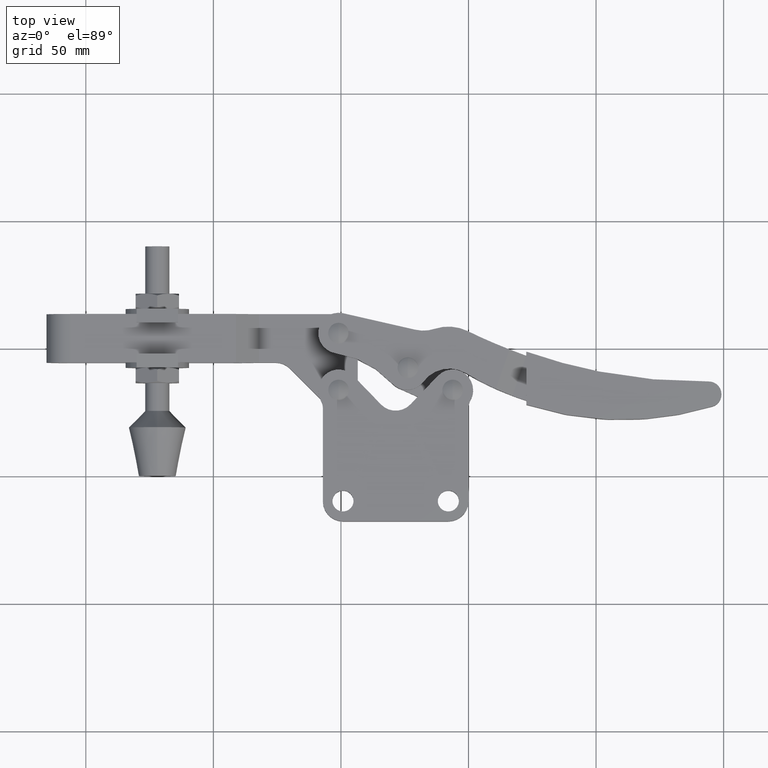
[diagram: clean part render]
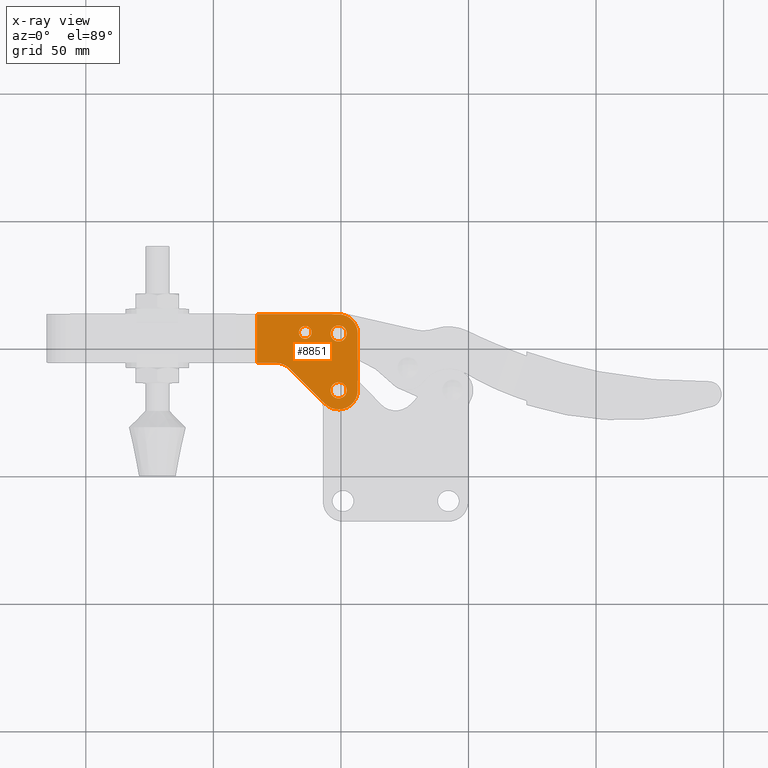
[diagram: x-ray — body ghosted, one internal face saturated and labeled with its STEP entity id]
A machine part, top view, then the same camera in x-ray: the body is ghosted and one INTERNAL B-rep face — a face not visible from any outside direction — is saturated and labeled: STEP entity #8851.
In plain terms, the highlighted planar face has unit normal (0, 0, -1).
Its self-contained STEP definition (entity closure, byte-faithful):
#44 = CARTESIAN_POINT ( 'NONE',  ( -63.99995407773911900, 56.30002650133089000, -4.000050000002540100 ) ) ;
#176 = FACE_BOUND ( 'NONE', #1100, .T. ) ;
#189 = DIRECTION ( 'NONE',  ( 2.023005870433254700E-006, 0.9999999999979537500, 0.0000000000000000000 ) ) ;
#372 = CARTESIAN_POINT ( 'NONE',  ( -39.51663489087625400, 26.09997697137130500, -4.000050000001612800 ) ) ;
#446 = ORIENTED_EDGE ( 'NONE', *, *, #3981, .T. ) ;
#448 = EDGE_LOOP ( 'NONE', ( #2309, #8952 ) ) ;
#657 = AXIS2_PLACEMENT_3D ( 'NONE', #2849, #8020, #3609 ) ;
#766 = DIRECTION ( 'NONE',  ( 2.023005873930153100E-006, 0.9999999999979536400, 0.0000000000000000000 ) ) ;
#771 = EDGE_LOOP ( 'NONE', ( #2838, #5080 ) ) ;
#841 = VERTEX_POINT ( 'NONE', #1099 ) ;
#846 = DIRECTION ( 'NONE',  ( -3.792184384588090100E-014, -2.488427435205626500E-017, 1.000000000000000000 ) ) ;
#856 = ORIENTED_EDGE ( 'NONE', *, *, #1672, .T. ) ;
#865 = ORIENTED_EDGE ( 'NONE', *, *, #3586, .T. ) ;
#873 = VERTEX_POINT ( 'NONE', #1000 ) ;
#906 = ORIENTED_EDGE ( 'NONE', *, *, #1124, .T. ) ;
#946 = EDGE_CURVE ( 'NONE', #8959, #1860, #7096, .T. ) ;
#971 = CARTESIAN_POINT ( 'NONE',  ( -83.00009926338675800, 26.10006493867436800, -4.000050000003261300 ) ) ;
#988 = AXIS2_PLACEMENT_3D ( 'NONE', #7773, #3359, #8522 ) ;
#1000 = CARTESIAN_POINT ( 'NONE',  ( -43.40000000001481300, 33.59998482745665900, -4.000050000001759400 ) ) ;
#1038 = DIRECTION ( 'NONE',  ( -3.792184384588090100E-014, -2.488427435205626500E-017, 1.000000000000000000 ) ) ;
#1066 = CARTESIAN_POINT ( 'NONE',  ( -50.89995488696815300, 55.89999999995472300, -4.000050000002043600 ) ) ;
#1068 = EDGE_CURVE ( 'NONE', #4754, #3084, #9172, .T. ) ;
#1099 = CARTESIAN_POINT ( 'NONE',  ( -43.39995488698365700, 55.89998482741069100, -4.000050000001758500 ) ) ;
#1100 = EDGE_LOOP ( 'NONE', ( #5196, #8486 ) ) ;
#1124 = EDGE_CURVE ( 'NONE', #1931, #7022, #5248, .T. ) ;
#1130 = DIRECTION ( 'NONE',  ( 2.023005871480253500E-006, 0.9999999999979536400, 2.496099046476291200E-017 ) ) ;
#1154 = CIRCLE ( 'NONE', #988, 2.499999999999955600 ) ;
#1176 = VECTOR ( 'NONE', #7626, 1000.000000000000100 ) ;
#1309 = AXIS2_PLACEMENT_3D ( 'NONE', #5287, #846, #6037 ) ;
#1520 = CIRCLE ( 'NONE', #6377, 3.175000000000152100 ) ;
#1524 = AXIS2_PLACEMENT_3D ( 'NONE', #44, #5198, #766 ) ;
#1538 = CARTESIAN_POINT ( 'NONE',  ( -47.72499999999894300, 33.60000000000069800, -4.000050000001923700 ) ) ;
#1641 = EDGE_CURVE ( 'NONE', #3084, #4754, #1520, .T. ) ;
#1672 = EDGE_CURVE ( 'NONE', #7887, #4812, #5226, .T. ) ;
#1687 = CARTESIAN_POINT ( 'NONE',  ( -56.20331158749574700, 28.29670986972097100, -4.000050000002245200 ) ) ;
#1749 = ORIENTED_EDGE ( 'NONE', *, *, #5071, .T. ) ;
#1810 = CARTESIAN_POINT ( 'NONE',  ( -83.00006224237932900, 44.40006493863683800, -4.000050000003262200 ) ) ;
#1860 = VERTEX_POINT ( 'NONE', #1538 ) ;
#1920 = CARTESIAN_POINT ( 'NONE',  ( -50.89995488696815300, 55.89999999995472300, -4.000050000002043600 ) ) ;
#1931 = VERTEX_POINT ( 'NONE', #4626 ) ;
#1947 = AXIS2_PLACEMENT_3D ( 'NONE', #1066, #7719, #189 ) ;
#2076 = CARTESIAN_POINT ( 'NONE',  ( -50.89993971442411400, 63.39999999993944600, -4.000050000002043600 ) ) ;
#2113 = EDGE_CURVE ( 'NONE', #7145, #873, #7620, .T. ) ;
#2186 = CARTESIAN_POINT ( 'NONE',  ( -165.3999781513020900, 44.40023163415047200, -4.000050000006385000 ) ) ;
#2309 = ORIENTED_EDGE ( 'NONE', *, *, #1068, .F. ) ;
#2412 = CARTESIAN_POINT ( 'NONE',  ( -43.40001517255885200, 26.09998482747173700, -4.000050000001759400 ) ) ;
#2664 = CARTESIAN_POINT ( 'NONE',  ( -54.07495488696830700, 55.89999999995472300, -4.000050000002163500 ) ) ;
#2673 = DIRECTION ( 'NONE',  ( 2.023005871154543400E-006, 0.9999999999979537500, 0.0000000000000000000 ) ) ;
#2837 = CARTESIAN_POINT ( 'NONE',  ( -54.07500000000013100, 33.60000000000069800, -4.000050000002164400 ) ) ;
#2838 = ORIENTED_EDGE ( 'NONE', *, *, #8563, .F. ) ;
#2849 = CARTESIAN_POINT ( 'NONE',  ( -50.89999999999953700, 33.60000000000069800, -4.000050000002044500 ) ) ;
#3021 = DIRECTION ( 'NONE',  ( 2.023005870432971800E-006, 0.9999999999979537500, 0.0000000000000000000 ) ) ;
#3034 = VECTOR ( 'NONE', #7565, 1000.000000000000000 ) ;
#3084 = VERTEX_POINT ( 'NONE', #2664 ) ;
#3188 = CARTESIAN_POINT ( 'NONE',  ( -66.49995407773396000, 56.30003155884556800, -4.000050000002635100 ) ) ;
#3261 = VECTOR ( 'NONE', #4731, 1000.000000000000100 ) ;
#3359 = DIRECTION ( 'NONE',  ( -3.792184384588090100E-014, -2.488427435205626500E-017, 1.000000000000000000 ) ) ;
#3512 = ORIENTED_EDGE ( 'NONE', *, *, #5987, .T. ) ;
#3586 = EDGE_CURVE ( 'NONE', #4812, #4197, #5110, .T. ) ;
#3609 = DIRECTION ( 'NONE',  ( 2.023005870432971800E-006, 0.9999999999979537500, 0.0000000000000000000 ) ) ;
#3835 = ORIENTED_EDGE ( 'NONE', *, *, #2113, .T. ) ;
#3981 = EDGE_CURVE ( 'NONE', #4197, #8551, #9025, .T. ) ;
#4051 = DIRECTION ( 'NONE',  ( 3.792184384588090100E-014, 2.488427435205626500E-017, -1.000000000000000000 ) ) ;
#4097 = DIRECTION ( 'NONE',  ( -3.792184384588090100E-014, -2.488427435205626500E-017, 1.000000000000000000 ) ) ;
#4106 = FACE_BOUND ( 'NONE', #771, .T. ) ;
#4125 = AXIS2_PLACEMENT_3D ( 'NONE', #7948, #7354, #3021 ) ;
#4169 = CIRCLE ( 'NONE', #8677, 7.500000000000060400 ) ;
#4197 = VERTEX_POINT ( 'NONE', #1810 ) ;
#4262 = EDGE_CURVE ( 'NONE', #4702, #6664, #1154, .T. ) ;
#4340 = CIRCLE ( 'NONE', #4932, 8.000000000001527700 ) ;
#4626 = CARTESIAN_POINT ( 'NONE',  ( -69.96343885898414800, 42.05689281495847400, -4.000050000002766600 ) ) ;
#4702 = VERTEX_POINT ( 'NONE', #3188 ) ;
#4731 = DIRECTION ( 'NONE',  ( -0.9999999999979536400, 2.023005871508876400E-006, -3.792184379546225800E-014 ) ) ;
#4754 = VERTEX_POINT ( 'NONE', #9128 ) ;
#4756 = CARTESIAN_POINT ( 'NONE',  ( -50.90001517254349000, 26.10000000001645000, -4.000050000002044500 ) ) ;
#4757 = CARTESIAN_POINT ( 'NONE',  ( -69.96343885898414800, 42.05689281495847400, -4.000050000002766600 ) ) ;
#4812 = VERTEX_POINT ( 'NONE', #6265 ) ;
#4813 = AXIS2_PLACEMENT_3D ( 'NONE', #9273, #4097, #8517 ) ;
#4842 = ORIENTED_EDGE ( 'NONE', *, *, #8071, .F. ) ;
#4875 = CIRCLE ( 'NONE', #1309, 7.499999999999595900 ) ;
#4932 = AXIS2_PLACEMENT_3D ( 'NONE', #8475, #4051, #9225 ) ;
#5071 = EDGE_CURVE ( 'NONE', #7022, #7145, #4875, .T. ) ;
#5080 = ORIENTED_EDGE ( 'NONE', *, *, #946, .F. ) ;
#5096 = VECTOR ( 'NONE', #6668, 1000.000000000000100 ) ;
#5110 = LINE ( 'NONE', #971, #1176 ) ;
#5196 = ORIENTED_EDGE ( 'NONE', *, *, #4262, .F. ) ;
#5198 = DIRECTION ( 'NONE',  ( -3.792184384588090100E-014, -2.488427435205626500E-017, 1.000000000000000000 ) ) ;
#5226 = LINE ( 'NONE', #9193, #3261 ) ;
#5248 = LINE ( 'NONE', #4757, #3034 ) ;
#5287 = CARTESIAN_POINT ( 'NONE',  ( -50.89999999999953700, 33.60000000000069800, -4.000050000002044500 ) ) ;
#5392 = CIRCLE ( 'NONE', #657, 3.175000000000596200 ) ;
#5489 = DIRECTION ( 'NONE',  ( 2.023005870433254700E-006, 0.9999999999979537500, 0.0000000000000000000 ) ) ;
#5573 = DIRECTION ( 'NONE',  ( 3.792184384588089500E-014, 2.488427435205626200E-017, -1.000000000000000000 ) ) ;
#5703 = ORIENTED_EDGE ( 'NONE', *, *, #8815, .T. ) ;
#5987 = EDGE_CURVE ( 'NONE', #841, #7887, #4169, .T. ) ;
#6037 = DIRECTION ( 'NONE',  ( 2.023005871154668400E-006, 0.9999999999979536400, 0.0000000000000000000 ) ) ;
#6090 = FACE_BOUND ( 'NONE', #448, .T. ) ;
#6220 = LINE ( 'NONE', #2412, #6452 ) ;
#6229 = CARTESIAN_POINT ( 'NONE',  ( -50.89995488696815300, 55.89999999995472300, -4.000050000002043600 ) ) ;
#6265 = CARTESIAN_POINT ( 'NONE',  ( -83.00002380526774500, 63.40006493859803500, -4.000050000003258600 ) ) ;
#6377 = AXIS2_PLACEMENT_3D ( 'NONE', #6229, #1038, #5489 ) ;
#6452 = VECTOR ( 'NONE', #7573, 1000.000000000000100 ) ;
#6664 = VERTEX_POINT ( 'NONE', #7124 ) ;
#6668 = DIRECTION ( 'NONE',  ( 0.9999999999979536400, -2.023005870746017800E-006, 3.792184379546225800E-014 ) ) ;
#6855 = EDGE_LOOP ( 'NONE', ( #865, #446, #5703, #906, #1749, #3835, #4842, #3512, #856 ) ) ;
#7022 = VERTEX_POINT ( 'NONE', #1687 ) ;
#7027 = PLANE ( 'NONE',  #7897 ) ;
#7096 = CIRCLE ( 'NONE', #4125, 3.175000000000596200 ) ;
#7107 = DIRECTION ( 'NONE',  ( -3.792184384588090100E-014, -2.488427435205626500E-017, 1.000000000000000000 ) ) ;
#7124 = CARTESIAN_POINT ( 'NONE',  ( -61.49995407774427700, 56.30002144381621300, -4.000050000002445900 ) ) ;
#7145 = VERTEX_POINT ( 'NONE', #4756 ) ;
#7354 = DIRECTION ( 'NONE',  ( -3.792184384588090100E-014, -2.488427435205626500E-017, 1.000000000000000000 ) ) ;
#7565 = DIRECTION ( 'NONE',  ( 0.7071053507039490900, -0.7071082116662521500, 2.679714281724630800E-014 ) ) ;
#7573 = DIRECTION ( 'NONE',  ( -2.023005871480253500E-006, -0.9999999999979536400, -2.496099046476291200E-017 ) ) ;
#7620 = CIRCLE ( 'NONE', #4813, 7.499999999999595900 ) ;
#7626 = DIRECTION ( 'NONE',  ( -2.023005871480253500E-006, -0.9999999999979536400, -2.496099046476291200E-017 ) ) ;
#7719 = DIRECTION ( 'NONE',  ( -3.792184384588090100E-014, -2.488427435205626500E-017, 1.000000000000000000 ) ) ;
#7773 = CARTESIAN_POINT ( 'NONE',  ( -63.99995407773911900, 56.30002650133089000, -4.000050000002540100 ) ) ;
#7792 = FACE_OUTER_BOUND ( 'NONE', #6855, .T. ) ;
#7887 = VERTEX_POINT ( 'NONE', #2076 ) ;
#7897 = AXIS2_PLACEMENT_3D ( 'NONE', #372, #5573, #1130 ) ;
#7948 = CARTESIAN_POINT ( 'NONE',  ( -50.89999999999953700, 33.60000000000069800, -4.000050000002044500 ) ) ;
#8020 = DIRECTION ( 'NONE',  ( -3.792184384588090100E-014, -2.488427435205626500E-017, 1.000000000000000000 ) ) ;
#8071 = EDGE_CURVE ( 'NONE', #841, #873, #6220, .T. ) ;
#8196 = EDGE_CURVE ( 'NONE', #6664, #4702, #9329, .T. ) ;
#8475 = CARTESIAN_POINT ( 'NONE',  ( -75.62030455231527500, 36.40005000932582400, -4.000050000002980600 ) ) ;
#8486 = ORIENTED_EDGE ( 'NONE', *, *, #8196, .F. ) ;
#8517 = DIRECTION ( 'NONE',  ( 2.023005871154668400E-006, 0.9999999999979536400, 0.0000000000000000000 ) ) ;
#8522 = DIRECTION ( 'NONE',  ( 2.023005873930153100E-006, 0.9999999999979536400, 0.0000000000000000000 ) ) ;
#8551 = VERTEX_POINT ( 'NONE', #8729 ) ;
#8563 = EDGE_CURVE ( 'NONE', #1860, #8959, #5392, .T. ) ;
#8677 = AXIS2_PLACEMENT_3D ( 'NONE', #1920, #7107, #2673 ) ;
#8729 = CARTESIAN_POINT ( 'NONE',  ( -75.62028836826831900, 44.40005000931098100, -4.000050000002980600 ) ) ;
#8815 = EDGE_CURVE ( 'NONE', #8551, #1931, #4340, .T. ) ;
#8851 = ADVANCED_FACE ( 'NONE', ( #6090, #4106, #7792, #176 ), #7027, .F. ) ;
#8952 = ORIENTED_EDGE ( 'NONE', *, *, #1641, .F. ) ;
#8959 = VERTEX_POINT ( 'NONE', #2837 ) ;
#9025 = LINE ( 'NONE', #2186, #5096 ) ;
#9128 = CARTESIAN_POINT ( 'NONE',  ( -47.72495488696800700, 55.89999999995472300, -4.000050000001922800 ) ) ;
#9172 = CIRCLE ( 'NONE', #1947, 3.175000000000152100 ) ;
#9193 = CARTESIAN_POINT ( 'NONE',  ( -39.51655943275724800, 63.39997697129429400, -4.000050000001611900 ) ) ;
#9225 = DIRECTION ( 'NONE',  ( 2.023005872195007400E-006, 0.9999999999979537500, 0.0000000000000000000 ) ) ;
#9273 = CARTESIAN_POINT ( 'NONE',  ( -50.89999999999953700, 33.60000000000069800, -4.000050000002044500 ) ) ;
#9329 = CIRCLE ( 'NONE', #1524, 2.499999999999955600 ) ;